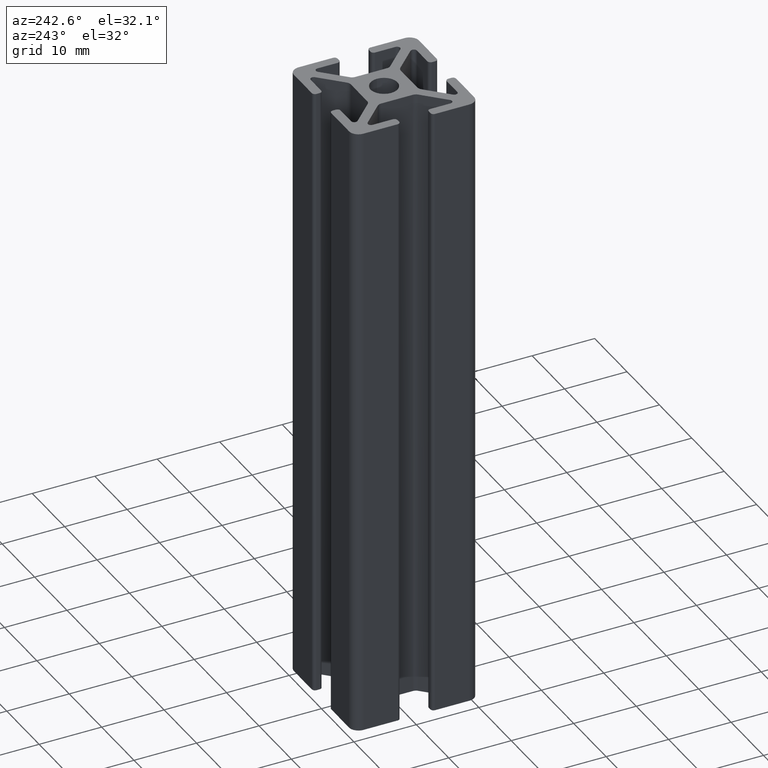
[diagram: clean part render]
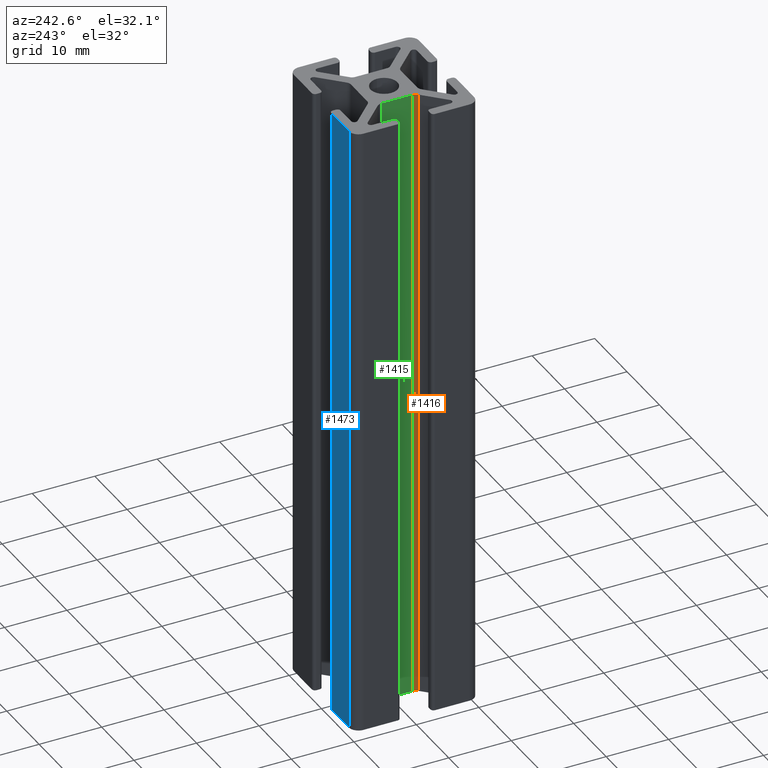
[diagram: same view with three faces highlighted in distinct colors, each labeled with its STEP entity id]
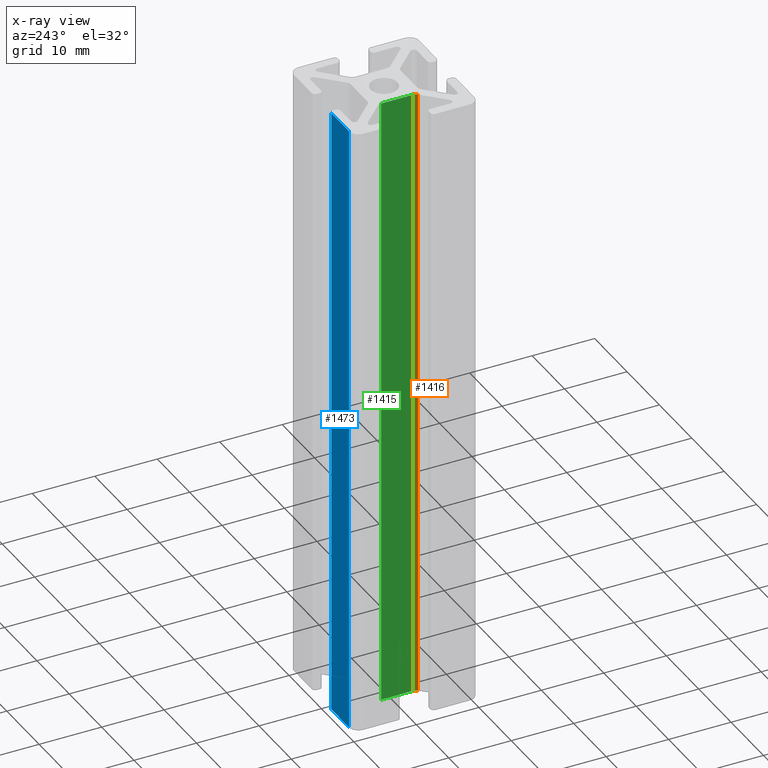
[diagram: x-ray of the same camera — body ghosted, the three highlighted faces saturated]
A machine part, auxiliary view with three faces highlighted in distinct colors.
The next image is the same camera in x-ray (body ghosted, the three faces saturated) — at least one of them is partly hidden behind the body in this view.
Their STEP definitions:

[orange] entity #1416 — the highlighted cylindrical surface (edge-blend (fillet) strip) has radius 1 mm, axis along (0, 0, 1).
#64=FACE_OUTER_BOUND('',#139,.T.);
#139=EDGE_LOOP('',(#967,#968,#969,#970));
#225=LINE('',#2129,#369);
#226=LINE('',#2135,#370);
#369=VECTOR('',#1684,100.);
#370=VECTOR('',#1691,100.);
#505=CIRCLE('',#1502,0.999999999999996);
#506=CIRCLE('',#1503,0.999999999999996);
#587=VERTEX_POINT('',#2125);
#588=VERTEX_POINT('',#2127);
#589=VERTEX_POINT('',#2131);
#590=VERTEX_POINT('',#2133);
#741=EDGE_CURVE('',#588,#587,#225,.T.);
#742=EDGE_CURVE('',#587,#589,#505,.T.);
#743=EDGE_CURVE('',#590,#588,#506,.T.);
#744=EDGE_CURVE('',#590,#589,#226,.T.);
#967=ORIENTED_EDGE('',*,*,#742,.F.);
#968=ORIENTED_EDGE('',*,*,#741,.F.);
#969=ORIENTED_EDGE('',*,*,#743,.F.);
#970=ORIENTED_EDGE('',*,*,#744,.T.);
#1375=CYLINDRICAL_SURFACE('',#1501,0.999999999999996);
#1416=ADVANCED_FACE('',(#64),#1375,.F.);
#1501=AXIS2_PLACEMENT_3D('',#2130,#1685,#1686);
#1502=AXIS2_PLACEMENT_3D('',#2132,#1687,#1688);
#1503=AXIS2_PLACEMENT_3D('',#2134,#1689,#1690);
#1684=DIRECTION('',(0.,0.,1.));
#1685=DIRECTION('center_axis',(0.,0.,1.));
#1686=DIRECTION('ref_axis',(0.707106781186549,-0.707106781186546,0.));
#1687=DIRECTION('center_axis',(0.,0.,-1.));
#1688=DIRECTION('ref_axis',(0.707106781186549,-0.707106781186546,0.));
#1689=DIRECTION('center_axis',(0.,0.,1.));
#1690=DIRECTION('ref_axis',(0.707106781186549,-0.707106781186546,0.));
#1691=DIRECTION('',(0.,0.,1.));
#2125=CARTESIAN_POINT('',(-4.,-2.52512626584708,100.));
#2127=CARTESIAN_POINT('',(-4.,-2.52512626584708,0.));
#2129=CARTESIAN_POINT('',(-4.,-2.52512626584708,0.));
#2130=CARTESIAN_POINT('Origin',(-5.,-2.52512626584709,0.));
#2131=CARTESIAN_POINT('',(-4.29289321881345,-3.23223304703363,100.));
#2132=CARTESIAN_POINT('Origin',(-5.,-2.52512626584709,100.));
#2133=CARTESIAN_POINT('',(-4.29289321881345,-3.23223304703363,0.));
#2134=CARTESIAN_POINT('Origin',(-5.,-2.52512626584709,0.));
#2135=CARTESIAN_POINT('',(-4.29289321881345,-3.23223304703363,0.));

[blue] entity #1473 — the highlighted planar face has unit normal (0, 1, 0).
#50=PLANE('',#1616);
#121=FACE_OUTER_BOUND('',#197,.T.);
#197=EDGE_LOOP('',(#1193,#1194,#1195,#1196));
#273=LINE('',#2284,#417);
#341=LINE('',#2482,#485);
#342=LINE('',#2484,#486);
#343=LINE('',#2485,#487);
#417=VECTOR('',#1838,100.);
#485=VECTOR('',#2032,5.50000000000001);
#486=VECTOR('',#2033,100.);
#487=VECTOR('',#2034,5.50000000000001);
#641=VERTEX_POINT('',#2280);
#642=VERTEX_POINT('',#2282);
#709=VERTEX_POINT('',#2481);
#710=VERTEX_POINT('',#2483);
#817=EDGE_CURVE('',#641,#642,#273,.T.);
#915=EDGE_CURVE('',#709,#642,#341,.T.);
#916=EDGE_CURVE('',#709,#710,#342,.T.);
#917=EDGE_CURVE('',#710,#641,#343,.T.);
#1193=ORIENTED_EDGE('',*,*,#817,.T.);
#1194=ORIENTED_EDGE('',*,*,#915,.F.);
#1195=ORIENTED_EDGE('',*,*,#916,.T.);
#1196=ORIENTED_EDGE('',*,*,#917,.T.);
#1473=ADVANCED_FACE('',(#121),#50,.T.);
#1616=AXIS2_PLACEMENT_3D('',#2480,#2030,#2031);
#1838=DIRECTION('',(0.,0.,-1.));
#2030=DIRECTION('center_axis',(6.53072367426563E-17,1.,0.));
#2031=DIRECTION('ref_axis',(-1.,0.,0.));
#2032=DIRECTION('',(1.,-6.53072367426563E-17,0.));
#2033=DIRECTION('',(0.,0.,1.));
#2034=DIRECTION('',(1.,-6.53072367426563E-17,0.));
#2280=CARTESIAN_POINT('',(-2.99999999999999,10.,100.));
#2282=CARTESIAN_POINT('',(-2.99999999999999,10.,0.));
#2284=CARTESIAN_POINT('',(-3.,10.,0.));
#2480=CARTESIAN_POINT('Origin',(8.5,10.,0.));
#2481=CARTESIAN_POINT('',(-8.5,10.,0.));
#2482=CARTESIAN_POINT('',(4.25,10.,0.));
#2483=CARTESIAN_POINT('',(-8.5,10.,100.));
#2484=CARTESIAN_POINT('',(-8.5,10.,0.));
#2485=CARTESIAN_POINT('',(4.25,10.,100.));

[green] entity #1415 — the highlighted planar face has unit normal (1, 0, 0).
#21=PLANE('',#1500);
#63=FACE_OUTER_BOUND('',#138,.T.);
#138=EDGE_LOOP('',(#963,#964,#965,#966));
#222=LINE('',#2123,#366);
#223=LINE('',#2126,#367);
#224=LINE('',#2128,#368);
#225=LINE('',#2129,#369);
#366=VECTOR('',#1679,100.);
#367=VECTOR('',#1682,5.05025253169417);
#368=VECTOR('',#1683,5.05025253169417);
#369=VECTOR('',#1684,100.);
#585=VERTEX_POINT('',#2119);
#586=VERTEX_POINT('',#2121);
#587=VERTEX_POINT('',#2125);
#588=VERTEX_POINT('',#2127);
#738=EDGE_CURVE('',#586,#585,#222,.T.);
#739=EDGE_CURVE('',#585,#587,#223,.T.);
#740=EDGE_CURVE('',#588,#586,#224,.T.);
#741=EDGE_CURVE('',#588,#587,#225,.T.);
#963=ORIENTED_EDGE('',*,*,#739,.F.);
#964=ORIENTED_EDGE('',*,*,#738,.F.);
#965=ORIENTED_EDGE('',*,*,#740,.F.);
#966=ORIENTED_EDGE('',*,*,#741,.T.);
#1415=ADVANCED_FACE('',(#63),#21,.F.);
#1500=AXIS2_PLACEMENT_3D('',#2124,#1680,#1681);
#1679=DIRECTION('',(0.,0.,1.));
#1680=DIRECTION('center_axis',(1.,0.,0.));
#1681=DIRECTION('ref_axis',(0.,1.,0.));
#1682=DIRECTION('',(0.,-1.,0.));
#1683=DIRECTION('',(0.,1.,0.));
#1684=DIRECTION('',(0.,0.,1.));
#2119=CARTESIAN_POINT('',(-4.,2.52512626584709,100.));
#2121=CARTESIAN_POINT('',(-4.,2.52512626584709,0.));
#2123=CARTESIAN_POINT('',(-4.,2.52512626584709,0.));
#2124=CARTESIAN_POINT('Origin',(-4.,-2.52512626584708,0.));
#2125=CARTESIAN_POINT('',(-4.,-2.52512626584708,100.));
#2126=CARTESIAN_POINT('',(-4.,-1.26256313292354,100.));
#2127=CARTESIAN_POINT('',(-4.,-2.52512626584708,0.));
#2128=CARTESIAN_POINT('',(-4.,-1.26256313292354,0.));
#2129=CARTESIAN_POINT('',(-4.,-2.52512626584708,0.));